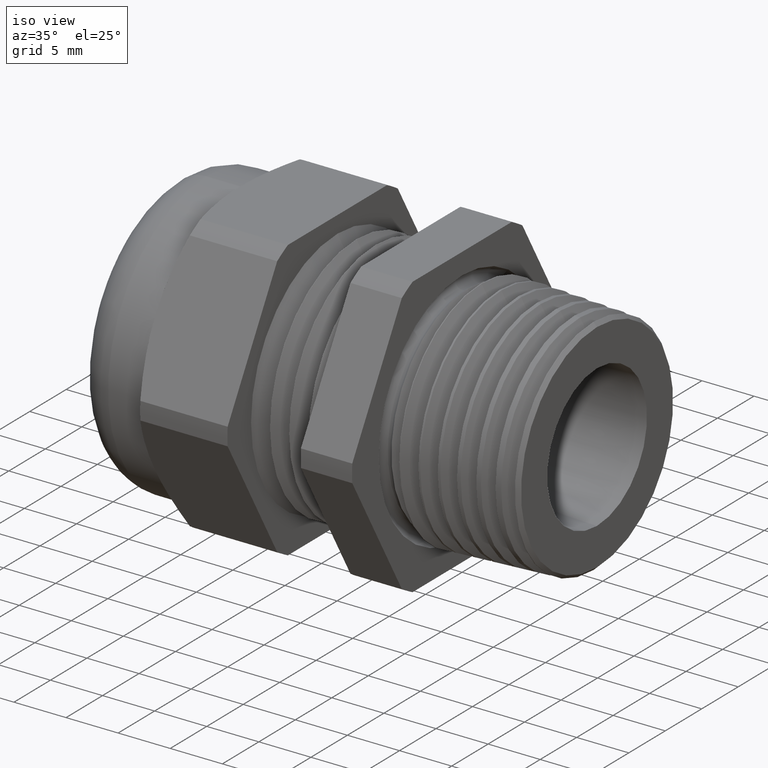
[diagram: clean part render]
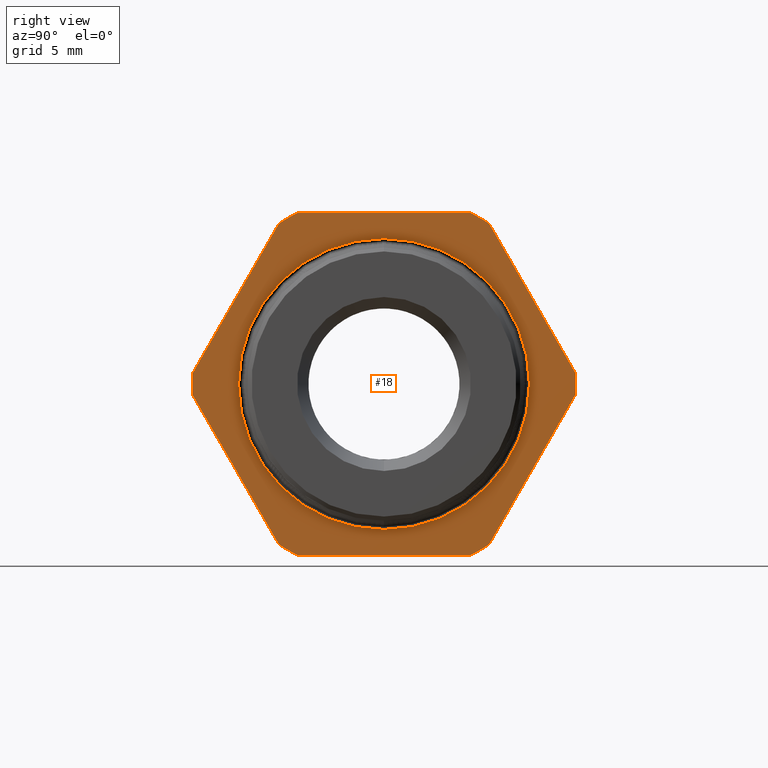
[diagram: tour spotlight — one face highlighted and labeled with its STEP entity id]
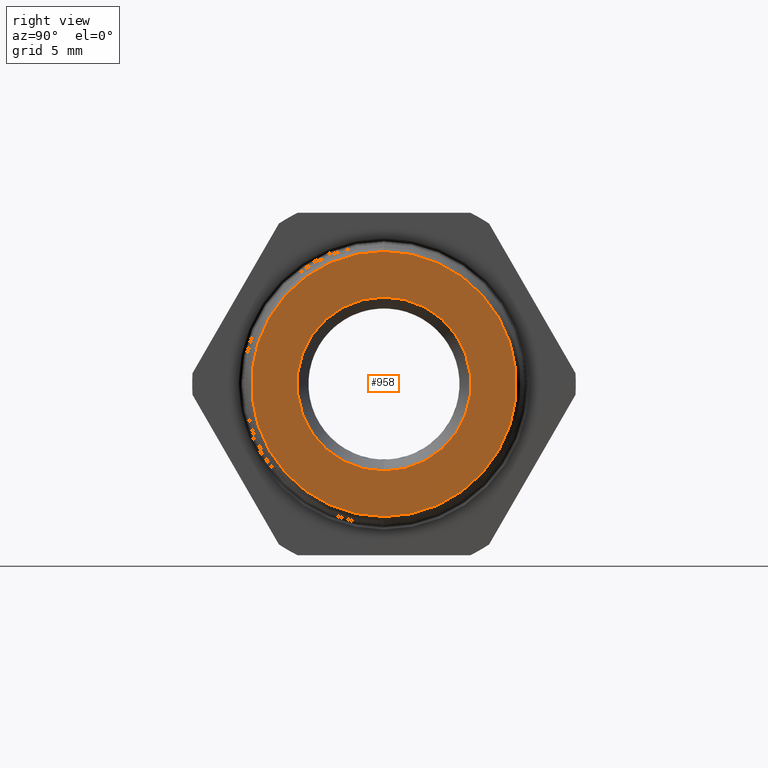
[diagram: tour spotlight — one face highlighted and labeled with its STEP entity id]
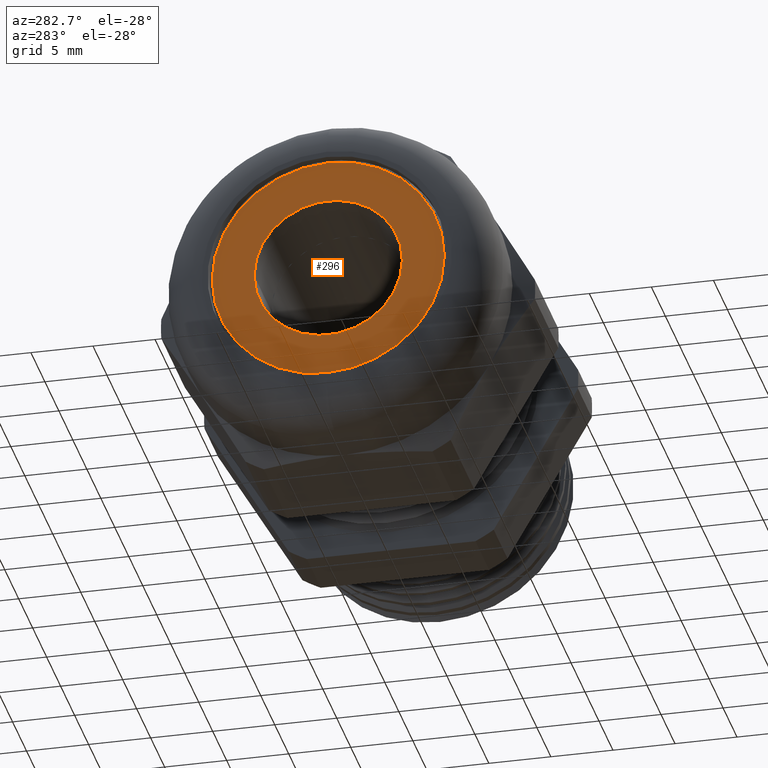
[diagram: tour spotlight — one face highlighted and labeled with its STEP entity id]
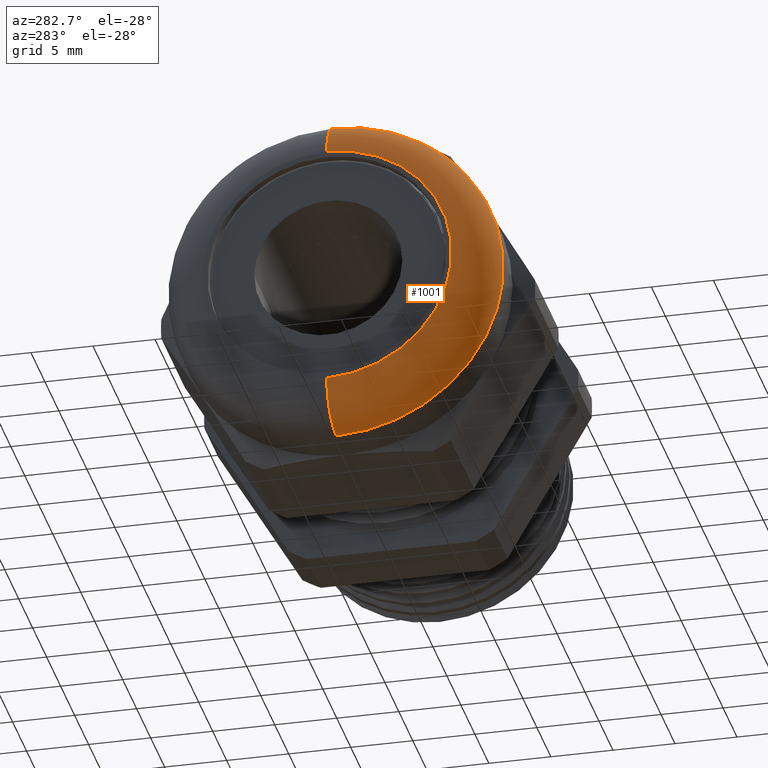
[diagram: tour spotlight — one face highlighted and labeled with its STEP entity id]
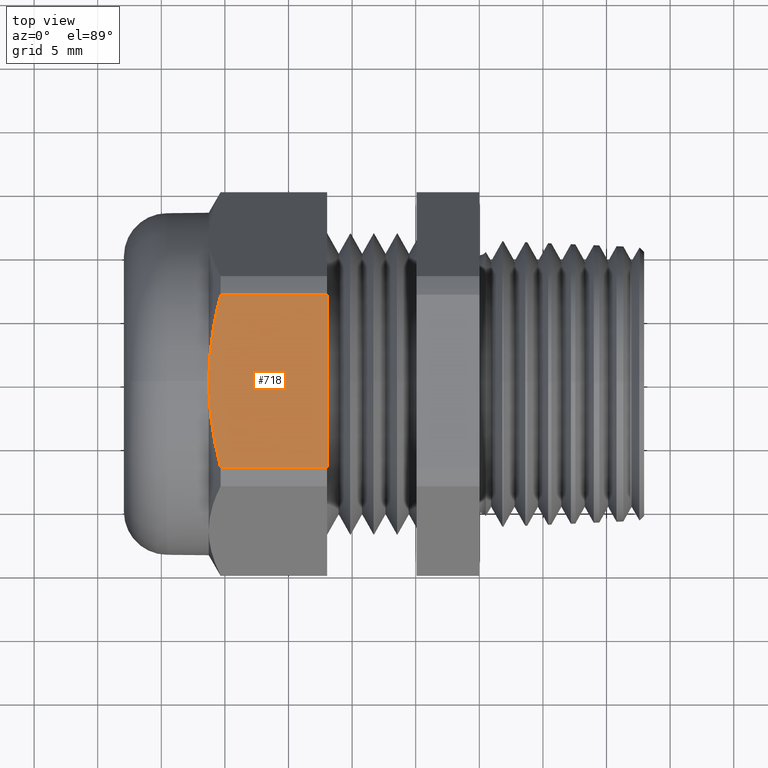
[diagram: tour spotlight — one face highlighted and labeled with its STEP entity id]
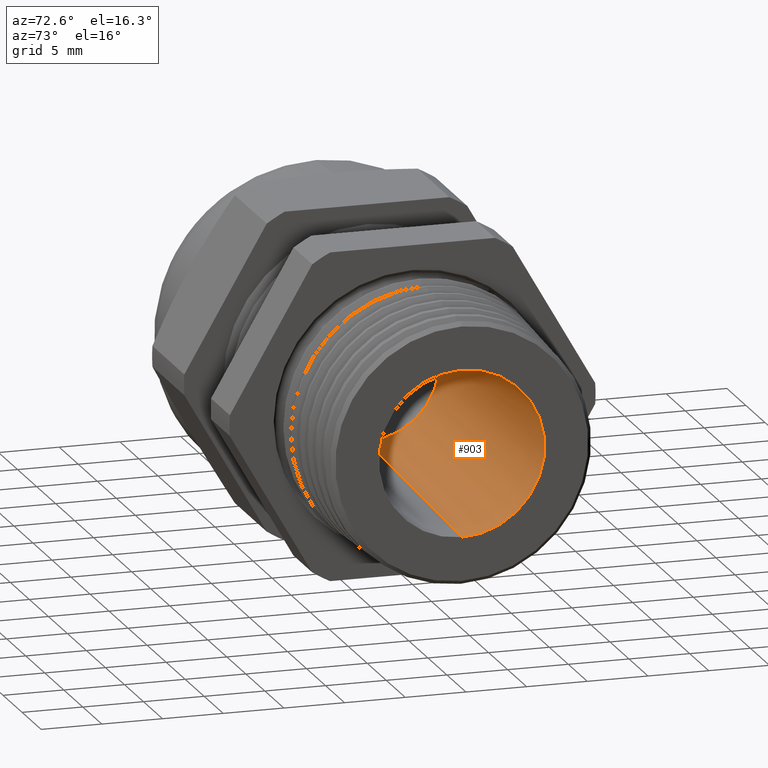
[diagram: tour spotlight — one face highlighted and labeled with its STEP entity id]
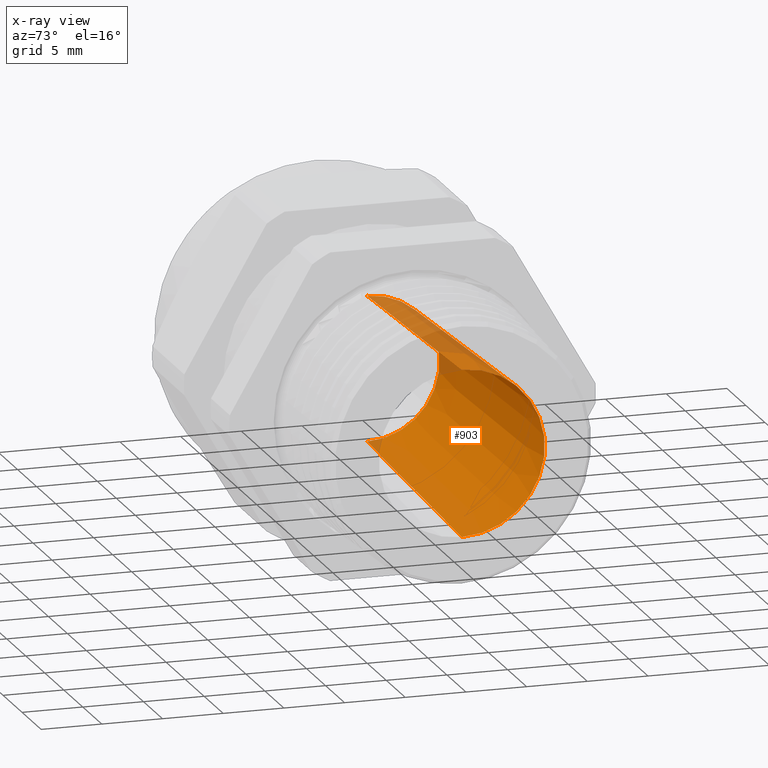
[diagram: x-ray of the same camera — body ghosted, this tour face saturated]
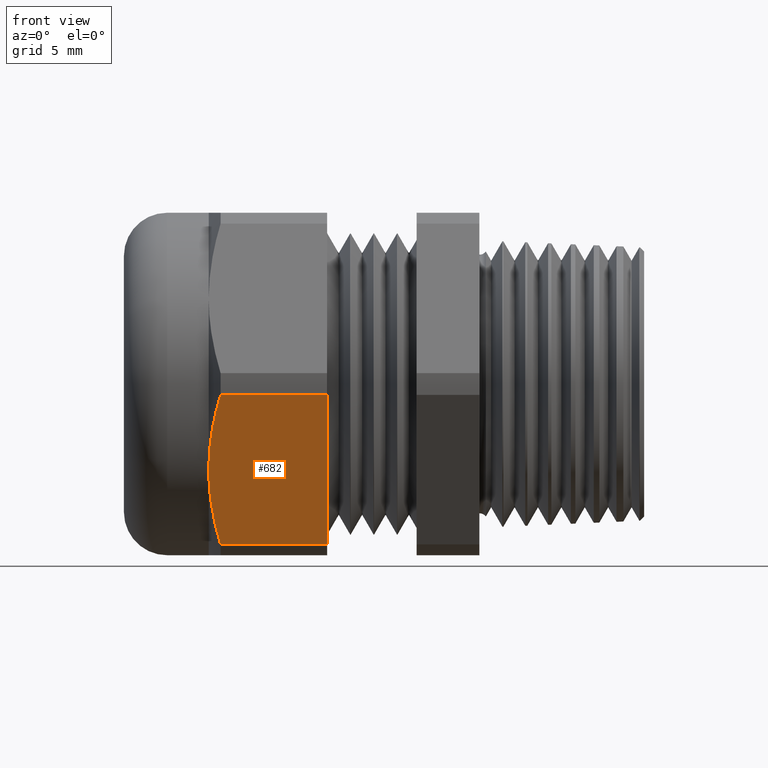
[diagram: tour spotlight — one face highlighted and labeled with its STEP entity id]
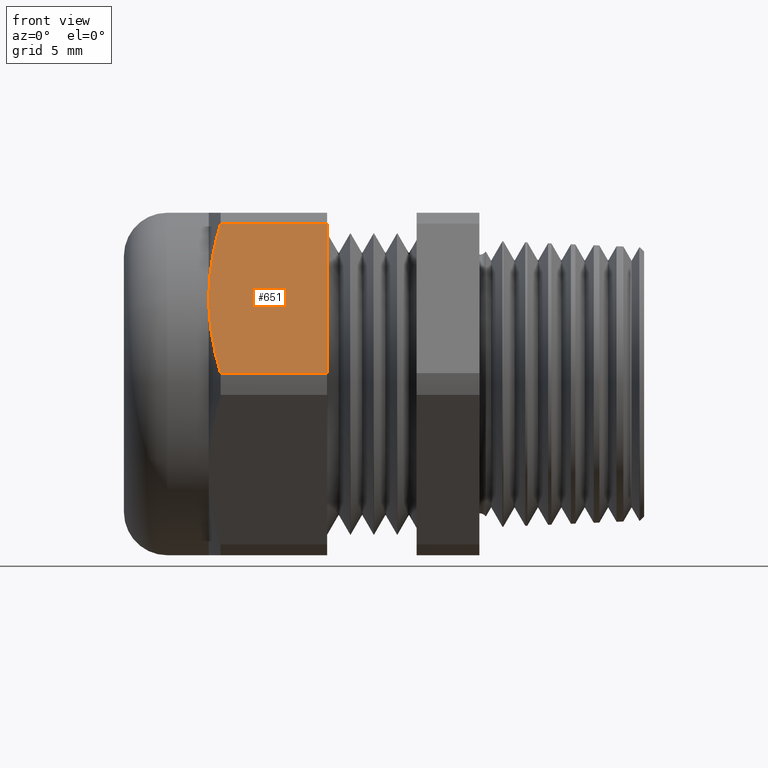
[diagram: tour spotlight — one face highlighted and labeled with its STEP entity id]
A machine part: a face-by-face anatomy tour. The part has 126 B-rep faces; the first image is the clean iso view, then the 8 largest visible faces are spotlighted one at a time (largest first), each with its STEP entity span.

Face 1 — right view, entity #18. In plain terms, the highlighted planar face has unit normal (-1, 0, 0).
Definition (entity closure, byte-faithful):
#9 = ORIENTED_EDGE ( 'NONE', *, *, #10, .F. ) ;
#10 = EDGE_CURVE ( 'NONE', #15, #16, #1203, .T. ) ;
#11 = ORIENTED_EDGE ( 'NONE', *, *, #17, .T. ) ;
#12 = VERTEX_POINT ( 'NONE', #1199 ) ;
#13 = EDGE_LOOP ( 'NONE', ( #11, #9, #38, #31, #34, #21, #24, #35, #53, #50, #47, #41 ) ) ;
#15 = VERTEX_POINT ( 'NONE', #1198 ) ;
#16 = VERTEX_POINT ( 'NONE', #1197 ) ;
#17 = EDGE_CURVE ( 'NONE', #12, #16, #1196, .T. ) ;
#18 = ADVANCED_FACE ( 'NONE', ( #1192, #1191 ), #1190, .F. ) ;
#21 = ORIENTED_EDGE ( 'NONE', *, *, #22, .F. ) ;
#22 = EDGE_CURVE ( 'NONE', #27, #23, #1244, .T. ) ;
#23 = VERTEX_POINT ( 'NONE', #1239 ) ;
#24 = ORIENTED_EDGE ( 'NONE', *, *, #25, .T. ) ;
#25 = EDGE_CURVE ( 'NONE', #27, #26, #1238, .T. ) ;
#26 = VERTEX_POINT ( 'NONE', #1234 ) ;
#27 = VERTEX_POINT ( 'NONE', #1233 ) ;
#31 = ORIENTED_EDGE ( 'NONE', *, *, #37, .F. ) ;
#32 = VERTEX_POINT ( 'NONE', #1228 ) ;
#33 = VERTEX_POINT ( 'NONE', #1227 ) ;
#34 = ORIENTED_EDGE ( 'NONE', *, *, #36, .T. ) ;
#35 = ORIENTED_EDGE ( 'NONE', *, *, #49, .F. ) ;
#36 = EDGE_CURVE ( 'NONE', #33, #23, #1226, .T. ) ;
#37 = EDGE_CURVE ( 'NONE', #33, #32, #1222, .T. ) ;
#38 = ORIENTED_EDGE ( 'NONE', *, *, #40, .T. ) ;
#39 = EDGE_LOOP ( 'NONE', ( #63, #65 ) ) ;
#40 = EDGE_CURVE ( 'NONE', #15, #32, #1217, .T. ) ;
#41 = ORIENTED_EDGE ( 'NONE', *, *, #43, .F. ) ;
#43 = EDGE_CURVE ( 'NONE', #12, #44, #1274, .T. ) ;
#44 = VERTEX_POINT ( 'NONE', #1269 ) ;
#45 = VERTEX_POINT ( 'NONE', #1268 ) ;
#46 = EDGE_CURVE ( 'NONE', #45, #44, #1267, .T. ) ;
#47 = ORIENTED_EDGE ( 'NONE', *, *, #46, .T. ) ;
#48 = VERTEX_POINT ( 'NONE', #1263 ) ;
#49 = EDGE_CURVE ( 'NONE', #48, #26, #1262, .T. ) ;
#50 = ORIENTED_EDGE ( 'NONE', *, *, #51, .F. ) ;
#51 = EDGE_CURVE ( 'NONE', #45, #54, #1257, .T. ) ;
#52 = EDGE_CURVE ( 'NONE', #48, #54, #1252, .T. ) ;
#53 = ORIENTED_EDGE ( 'NONE', *, *, #52, .T. ) ;
#54 = VERTEX_POINT ( 'NONE', #1248 ) ;
#63 = ORIENTED_EDGE ( 'NONE', *, *, #64, .F. ) ;
#64 = EDGE_CURVE ( 'NONE', #206, #203, #1298, .T. ) ;
#65 = ORIENTED_EDGE ( 'NONE', *, *, #205, .F. ) ;
#203 = VERTEX_POINT ( 'NONE', #1586 ) ;
#205 = EDGE_CURVE ( 'NONE', #203, #206, #1585, .T. ) ;
#206 = VERTEX_POINT ( 'NONE', #1580 ) ;
#1186 = DIRECTION ( 'NONE',  ( 0.0000000000000000000, 0.0000000000000000000, 1.000000000000000000 ) ) ;
#1187 = DIRECTION ( 'NONE',  ( -1.000000000000000000, 0.0000000000000000000, 0.0000000000000000000 ) ) ;
#1188 = CARTESIAN_POINT ( 'NONE',  ( 0.0000000000000000000, 0.5936000000000001300, 0.0000000000000000000 ) ) ;
#1189 = AXIS2_PLACEMENT_3D ( 'NONE', #1188, #1187, #1186 ) ;
#1190 = PLANE ( 'NONE',  #1189 ) ;
#1191 = FACE_BOUND ( 'NONE', #39, .T. ) ;
#1192 = FACE_OUTER_BOUND ( 'NONE', #13, .T. ) ;
#1193 = DIRECTION ( 'NONE',  ( 0.0000000000000000000, 0.5000000000000003300, -0.8660254037844384900 ) ) ;
#1194 = VECTOR ( 'NONE', #1193, 39.37007874015748900 ) ;
#1195 = CARTESIAN_POINT ( 'NONE',  ( 0.0000000000000000000, -0.5926543782626886300, -0.03349250552087959500 ) ) ;
#1196 = LINE ( 'NONE', #1195, #1194 ) ;
#1197 = CARTESIAN_POINT ( 'NONE',  ( 0.0000000000000000000, -0.3253325497488162000, -0.4965074944791207400 ) ) ;
#1198 = CARTESIAN_POINT ( 'NONE',  ( 0.0000000000000000000, -0.2673218285138723200, -0.5299999999999999200 ) ) ;
#1199 = CARTESIAN_POINT ( 'NONE',  ( 0.0000000000000000000, -0.5926543782626886300, -0.03349250552087959500 ) ) ;
#1200 = DIRECTION ( 'NONE',  ( 0.0000000000000000000, 0.0000000000000000000, 1.000000000000000000 ) ) ;
#1201 = DIRECTION ( 'NONE',  ( -1.000000000000000000, 0.0000000000000000000, 0.0000000000000000000 ) ) ;
#1202 = AXIS2_PLACEMENT_3D ( 'NONE', #1209, #1201, #1200 ) ;
#1203 = CIRCLE ( 'NONE', #1202, 0.5936000000000001300 ) ;
#1209 = CARTESIAN_POINT ( 'NONE',  ( 0.0000000000000000000, 0.0000000000000000000, 0.0000000000000000000 ) ) ;
#1215 = VECTOR ( 'NONE', #1275, 39.37007874015748100 ) ;
#1216 = CARTESIAN_POINT ( 'NONE',  ( 0.0000000000000000000, -0.2673218285138724300, -0.5299999999999999200 ) ) ;
#1217 = LINE ( 'NONE', #1216, #1215 ) ;
#1218 = DIRECTION ( 'NONE',  ( 0.0000000000000000000, 0.0000000000000000000, 1.000000000000000000 ) ) ;
#1219 = DIRECTION ( 'NONE',  ( -1.000000000000000000, 0.0000000000000000000, 0.0000000000000000000 ) ) ;
#1220 = CARTESIAN_POINT ( 'NONE',  ( 0.0000000000000000000, 0.0000000000000000000, 0.0000000000000000000 ) ) ;
#1221 = AXIS2_PLACEMENT_3D ( 'NONE', #1220, #1219, #1218 ) ;
#1222 = CIRCLE ( 'NONE', #1221, 0.5936000000000001300 ) ;
#1223 = DIRECTION ( 'NONE',  ( 0.0000000000000000000, 0.5000000000000000000, 0.8660254037844386000 ) ) ;
#1224 = VECTOR ( 'NONE', #1223, 39.37007874015748900 ) ;
#1225 = CARTESIAN_POINT ( 'NONE',  ( 0.0000000000000000000, 0.3253325497488162000, -0.4965074944791207400 ) ) ;
#1226 = LINE ( 'NONE', #1225, #1224 ) ;
#1227 = CARTESIAN_POINT ( 'NONE',  ( 0.0000000000000000000, 0.3253325497488163100, -0.4965074944791206800 ) ) ;
#1228 = CARTESIAN_POINT ( 'NONE',  ( 0.0000000000000000000, 0.2673218285138724300, -0.5299999999999999200 ) ) ;
#1233 = CARTESIAN_POINT ( 'NONE',  ( 0.0000000000000000000, 0.5926543782626885200, 0.03349250552087933200 ) ) ;
#1234 = CARTESIAN_POINT ( 'NONE',  ( 0.0000000000000000000, 0.3253325497488162000, 0.4965074944791207400 ) ) ;
#1235 = DIRECTION ( 'NONE',  ( 0.0000000000000000000, -0.5000000000000001100, 0.8660254037844386000 ) ) ;
#1236 = VECTOR ( 'NONE', #1235, 39.37007874015748100 ) ;
#1237 = CARTESIAN_POINT ( 'NONE',  ( 0.0000000000000000000, 0.5926543782626886300, 0.03349250552087932500 ) ) ;
#1238 = LINE ( 'NONE', #1237, #1236 ) ;
#1239 = CARTESIAN_POINT ( 'NONE',  ( 0.0000000000000000000, 0.5926543782626886300, -0.03349250552087918600 ) ) ;
#1240 = DIRECTION ( 'NONE',  ( 0.0000000000000000000, 0.0000000000000000000, 1.000000000000000000 ) ) ;
#1241 = DIRECTION ( 'NONE',  ( -1.000000000000000000, 0.0000000000000000000, 0.0000000000000000000 ) ) ;
#1242 = CARTESIAN_POINT ( 'NONE',  ( 0.0000000000000000000, 0.0000000000000000000, 0.0000000000000000000 ) ) ;
#1243 = AXIS2_PLACEMENT_3D ( 'NONE', #1242, #1241, #1240 ) ;
#1244 = CIRCLE ( 'NONE', #1243, 0.5936000000000001300 ) ;
#1248 = CARTESIAN_POINT ( 'NONE',  ( 0.0000000000000000000, -0.2673218285138724300, 0.5299999999999999200 ) ) ;
#1249 = DIRECTION ( 'NONE',  ( 0.0000000000000000000, -1.000000000000000000, 0.0000000000000000000 ) ) ;
#1250 = VECTOR ( 'NONE', #1249, 39.37007874015748100 ) ;
#1251 = CARTESIAN_POINT ( 'NONE',  ( 0.0000000000000000000, 0.2673218285138724300, 0.5299999999999999200 ) ) ;
#1252 = LINE ( 'NONE', #1251, #1250 ) ;
#1253 = DIRECTION ( 'NONE',  ( 0.0000000000000000000, 0.0000000000000000000, 1.000000000000000000 ) ) ;
#1254 = DIRECTION ( 'NONE',  ( -1.000000000000000000, 0.0000000000000000000, 0.0000000000000000000 ) ) ;
#1255 = CARTESIAN_POINT ( 'NONE',  ( 0.0000000000000000000, 0.0000000000000000000, 0.0000000000000000000 ) ) ;
#1256 = AXIS2_PLACEMENT_3D ( 'NONE', #1255, #1254, #1253 ) ;
#1257 = CIRCLE ( 'NONE', #1256, 0.5936000000000001300 ) ;
#1258 = DIRECTION ( 'NONE',  ( 0.0000000000000000000, 0.0000000000000000000, 1.000000000000000000 ) ) ;
#1259 = DIRECTION ( 'NONE',  ( -1.000000000000000000, 0.0000000000000000000, 0.0000000000000000000 ) ) ;
#1260 = CARTESIAN_POINT ( 'NONE',  ( 0.0000000000000000000, 0.0000000000000000000, 0.0000000000000000000 ) ) ;
#1261 = AXIS2_PLACEMENT_3D ( 'NONE', #1260, #1259, #1258 ) ;
#1262 = CIRCLE ( 'NONE', #1261, 0.5936000000000001300 ) ;
#1263 = CARTESIAN_POINT ( 'NONE',  ( 0.0000000000000000000, 0.2673218285138722600, 0.5299999999999999200 ) ) ;
#1264 = DIRECTION ( 'NONE',  ( 0.0000000000000000000, -0.5000000000000001100, -0.8660254037844386000 ) ) ;
#1265 = VECTOR ( 'NONE', #1264, 39.37007874015748100 ) ;
#1266 = CARTESIAN_POINT ( 'NONE',  ( 0.0000000000000000000, -0.3253325497488160900, 0.4965074944791207900 ) ) ;
#1267 = LINE ( 'NONE', #1266, #1265 ) ;
#1268 = CARTESIAN_POINT ( 'NONE',  ( 0.0000000000000000000, -0.3253325497488158700, 0.4965074944791209600 ) ) ;
#1269 = CARTESIAN_POINT ( 'NONE',  ( 0.0000000000000000000, -0.5926543782626886300, 0.03349250552087911600 ) ) ;
#1270 = DIRECTION ( 'NONE',  ( 0.0000000000000000000, 0.0000000000000000000, 1.000000000000000000 ) ) ;
#1271 = DIRECTION ( 'NONE',  ( -1.000000000000000000, 0.0000000000000000000, 0.0000000000000000000 ) ) ;
#1272 = CARTESIAN_POINT ( 'NONE',  ( 0.0000000000000000000, 0.0000000000000000000, 0.0000000000000000000 ) ) ;
#1273 = AXIS2_PLACEMENT_3D ( 'NONE', #1272, #1271, #1270 ) ;
#1274 = CIRCLE ( 'NONE', #1273, 0.5936000000000001300 ) ;
#1275 = DIRECTION ( 'NONE',  ( 0.0000000000000000000, 1.000000000000000000, 0.0000000000000000000 ) ) ;
#1290 = DIRECTION ( 'NONE',  ( 0.0000000000000000000, 0.0000000000000000000, 1.000000000000000000 ) ) ;
#1291 = DIRECTION ( 'NONE',  ( 1.000000000000000000, 0.0000000000000000000, 0.0000000000000000000 ) ) ;
#1292 = CARTESIAN_POINT ( 'NONE',  ( 0.0000000000000000000, 0.0000000000000000000, 0.0000000000000000000 ) ) ;
#1293 = AXIS2_PLACEMENT_3D ( 'NONE', #1292, #1291, #1290 ) ;
#1298 = CIRCLE ( 'NONE', #1293, 0.4499999999999998400 ) ;
#1580 = CARTESIAN_POINT ( 'NONE',  ( 0.0000000000000000000, 0.0000000000000000000, -0.4499999999999998400 ) ) ;
#1581 = DIRECTION ( 'NONE',  ( 0.0000000000000000000, 0.0000000000000000000, 1.000000000000000000 ) ) ;
#1582 = DIRECTION ( 'NONE',  ( 1.000000000000000000, 0.0000000000000000000, 0.0000000000000000000 ) ) ;
#1583 = CARTESIAN_POINT ( 'NONE',  ( 0.0000000000000000000, 0.0000000000000000000, 0.0000000000000000000 ) ) ;
#1584 = AXIS2_PLACEMENT_3D ( 'NONE', #1583, #1582, #1581 ) ;
#1585 = CIRCLE ( 'NONE', #1584, 0.4499999999999998400 ) ;
#1586 = CARTESIAN_POINT ( 'NONE',  ( 0.0000000000000000000, 5.510910596163088300E-017, 0.4499999999999998400 ) ) ;

Face 2 — right view, entity #958. In plain terms, the highlighted planar face has unit normal (-1, 0, 0).
Definition (entity closure, byte-faithful):
#178 = VERTEX_POINT ( 'NONE', #1512 ) ;
#182 = EDGE_CURVE ( 'NONE', #178, #183, #1507, .T. ) ;
#183 = VERTEX_POINT ( 'NONE', #1502 ) ;
#886 = ORIENTED_EDGE ( 'NONE', *, *, #887, .T. ) ;
#887 = EDGE_CURVE ( 'NONE', #3475, #3473, #2929, .T. ) ;
#888 = ORIENTED_EDGE ( 'NONE', *, *, #3469, .T. ) ;
#889 = EDGE_LOOP ( 'NONE', ( #890, #891 ) ) ;
#890 = ORIENTED_EDGE ( 'NONE', *, *, #182, .T. ) ;
#891 = ORIENTED_EDGE ( 'NONE', *, *, #957, .T. ) ;
#957 = EDGE_CURVE ( 'NONE', #183, #178, #2979, .T. ) ;
#958 = ADVANCED_FACE ( 'NONE', ( #2974, #2973 ), #2971, .F. ) ;
#959 = EDGE_LOOP ( 'NONE', ( #886, #888 ) ) ;
#1502 = CARTESIAN_POINT ( 'NONE',  ( 0.5100000000000000100, 3.297379322169752000E-017, 0.2692514547431565900 ) ) ;
#1503 = DIRECTION ( 'NONE',  ( 0.0000000000000000000, 0.0000000000000000000, 1.000000000000000000 ) ) ;
#1504 = DIRECTION ( 'NONE',  ( -1.000000000000000000, 0.0000000000000000000, 0.0000000000000000000 ) ) ;
#1505 = CARTESIAN_POINT ( 'NONE',  ( 0.5100000000000000100, 0.0000000000000000000, 0.0000000000000000000 ) ) ;
#1506 = AXIS2_PLACEMENT_3D ( 'NONE', #1505, #1504, #1503 ) ;
#1507 = CIRCLE ( 'NONE', #1506, 0.2692514547431565900 ) ;
#1512 = CARTESIAN_POINT ( 'NONE',  ( 0.5100000000000000100, 0.0000000000000000000, -0.2692514547431565900 ) ) ;
#2925 = DIRECTION ( 'NONE',  ( 0.0000000000000000000, 0.0000000000000000000, 1.000000000000000000 ) ) ;
#2926 = DIRECTION ( 'NONE',  ( 1.000000000000000000, 0.0000000000000000000, 0.0000000000000000000 ) ) ;
#2927 = CARTESIAN_POINT ( 'NONE',  ( 0.5099999999999999000, 0.0000000000000000000, 0.0000000000000000000 ) ) ;
#2928 = AXIS2_PLACEMENT_3D ( 'NONE', #2927, #2926, #2925 ) ;
#2929 = CIRCLE ( 'NONE', #2928, 0.4102329191166589900 ) ;
#2967 = DIRECTION ( 'NONE',  ( 0.0000000000000000000, 0.0000000000000000000, 1.000000000000000000 ) ) ;
#2968 = DIRECTION ( 'NONE',  ( -1.000000000000000000, 0.0000000000000000000, 0.0000000000000000000 ) ) ;
#2969 = CARTESIAN_POINT ( 'NONE',  ( 0.5099999999999999000, 0.4227329191166588300, 0.0000000000000000000 ) ) ;
#2970 = AXIS2_PLACEMENT_3D ( 'NONE', #2969, #2968, #2967 ) ;
#2971 = PLANE ( 'NONE',  #2970 ) ;
#2973 = FACE_BOUND ( 'NONE', #889, .T. ) ;
#2974 = FACE_OUTER_BOUND ( 'NONE', #959, .T. ) ;
#2975 = DIRECTION ( 'NONE',  ( 0.0000000000000000000, 0.0000000000000000000, 1.000000000000000000 ) ) ;
#2976 = DIRECTION ( 'NONE',  ( -1.000000000000000000, 0.0000000000000000000, 0.0000000000000000000 ) ) ;
#2977 = CARTESIAN_POINT ( 'NONE',  ( 0.5100000000000000100, 0.0000000000000000000, 0.0000000000000000000 ) ) ;
#2978 = AXIS2_PLACEMENT_3D ( 'NONE', #2977, #2976, #2975 ) ;
#2979 = CIRCLE ( 'NONE', #2978, 0.2692514547431565900 ) ;
#3259 = DIRECTION ( 'NONE',  ( 0.0000000000000000000, 0.0000000000000000000, 1.000000000000000000 ) ) ;
#3260 = DIRECTION ( 'NONE',  ( 1.000000000000000000, 0.0000000000000000000, 0.0000000000000000000 ) ) ;
#3261 = CARTESIAN_POINT ( 'NONE',  ( 0.5099999999999999000, 0.0000000000000000000, 0.0000000000000000000 ) ) ;
#3262 = AXIS2_PLACEMENT_3D ( 'NONE', #3261, #3260, #3259 ) ;
#3263 = CIRCLE ( 'NONE', #3262, 0.4102329191166589900 ) ;
#3314 = CARTESIAN_POINT ( 'NONE',  ( 0.5099999999999999000, 0.0000000000000000000, 0.4102329191166589900 ) ) ;
#3315 = CARTESIAN_POINT ( 'NONE',  ( 0.5099999999999999000, 5.103939133694167700E-017, -0.4102329191166589900 ) ) ;
#3469 = EDGE_CURVE ( 'NONE', #3473, #3475, #3263, .T. ) ;
#3473 = VERTEX_POINT ( 'NONE', #3315 ) ;
#3475 = VERTEX_POINT ( 'NONE', #3314 ) ;

Face 3 — auxiliary view, entity #296. In plain terms, the highlighted planar face has unit normal (-1, -0, 0).
Definition (entity closure, byte-faithful):
#279 = EDGE_CURVE ( 'NONE', #280, #281, #1700, .T. ) ;
#280 = VERTEX_POINT ( 'NONE', #1695 ) ;
#281 = VERTEX_POINT ( 'NONE', #1694 ) ;
#296 = ADVANCED_FACE ( 'NONE', ( #1735, #1734 ), #1733, .T. ) ;
#297 = EDGE_LOOP ( 'NONE', ( #298, #299 ) ) ;
#298 = ORIENTED_EDGE ( 'NONE', *, *, #350, .T. ) ;
#299 = ORIENTED_EDGE ( 'NONE', *, *, #340, .T. ) ;
#339 = VERTEX_POINT ( 'NONE', #1843 ) ;
#340 = EDGE_CURVE ( 'NONE', #339, #351, #1841, .T. ) ;
#341 = EDGE_LOOP ( 'NONE', ( #342, #343 ) ) ;
#342 = ORIENTED_EDGE ( 'NONE', *, *, #394, .T. ) ;
#343 = ORIENTED_EDGE ( 'NONE', *, *, #279, .T. ) ;
#350 = EDGE_CURVE ( 'NONE', #351, #339, #1821, .T. ) ;
#351 = VERTEX_POINT ( 'NONE', #1816 ) ;
#394 = EDGE_CURVE ( 'NONE', #281, #280, #1926, .T. ) ;
#1694 = CARTESIAN_POINT ( 'NONE',  ( -1.079999999999999800, 0.2349999999999999900, 0.0000000000000000000 ) ) ;
#1695 = CARTESIAN_POINT ( 'NONE',  ( -1.079999999999999800, -0.2350000000000003800, 2.877919977996282900E-017 ) ) ;
#1696 = DIRECTION ( 'NONE',  ( 0.0000000000000000000, 1.000000000000000000, 0.0000000000000000000 ) ) ;
#1697 = DIRECTION ( 'NONE',  ( 1.000000000000000000, 1.214306433183765200E-016, 0.0000000000000000000 ) ) ;
#1698 = CARTESIAN_POINT ( 'NONE',  ( -1.079999999999999800, -1.768595597816114400E-016, 0.0000000000000000000 ) ) ;
#1699 = AXIS2_PLACEMENT_3D ( 'NONE', #1698, #1697, #1696 ) ;
#1700 = CIRCLE ( 'NONE', #1699, 0.2350000000000001500 ) ;
#1729 = DIRECTION ( 'NONE',  ( 1.214306433183765200E-016, -1.000000000000000000, 0.0000000000000000000 ) ) ;
#1730 = DIRECTION ( 'NONE',  ( -1.000000000000000000, -1.214306433183765200E-016, 0.0000000000000000000 ) ) ;
#1731 = CARTESIAN_POINT ( 'NONE',  ( -1.080000000000000100, 0.3782499999999999800, 0.0000000000000000000 ) ) ;
#1732 = AXIS2_PLACEMENT_3D ( 'NONE', #1731, #1730, #1729 ) ;
#1733 = PLANE ( 'NONE',  #1732 ) ;
#1734 = FACE_BOUND ( 'NONE', #341, .T. ) ;
#1735 = FACE_OUTER_BOUND ( 'NONE', #297, .T. ) ;
#1816 = CARTESIAN_POINT ( 'NONE',  ( -1.080000000000000100, -0.3682500000000003000, 0.0000000000000000000 ) ) ;
#1817 = DIRECTION ( 'NONE',  ( 0.0000000000000000000, -1.000000000000000000, 0.0000000000000000000 ) ) ;
#1818 = DIRECTION ( 'NONE',  ( -1.000000000000000000, -1.214306433183765200E-016, 0.0000000000000000000 ) ) ;
#1819 = CARTESIAN_POINT ( 'NONE',  ( -1.080000000000000100, -1.768595597816114600E-016, 0.0000000000000000000 ) ) ;
#1820 = AXIS2_PLACEMENT_3D ( 'NONE', #1819, #1818, #1817 ) ;
#1821 = CIRCLE ( 'NONE', #1820, 0.3682500000000000800 ) ;
#1837 = DIRECTION ( 'NONE',  ( 0.0000000000000000000, -1.000000000000000000, 0.0000000000000000000 ) ) ;
#1838 = DIRECTION ( 'NONE',  ( -1.000000000000000000, -1.214306433183765200E-016, 0.0000000000000000000 ) ) ;
#1839 = CARTESIAN_POINT ( 'NONE',  ( -1.080000000000000100, -1.768595597816114600E-016, 0.0000000000000000000 ) ) ;
#1840 = AXIS2_PLACEMENT_3D ( 'NONE', #1839, #1838, #1837 ) ;
#1841 = CIRCLE ( 'NONE', #1840, 0.3682500000000000800 ) ;
#1843 = CARTESIAN_POINT ( 'NONE',  ( -1.080000000000000100, 0.3682499999999999100, 4.570994177817497700E-017 ) ) ;
#1922 = DIRECTION ( 'NONE',  ( 0.0000000000000000000, 1.000000000000000000, 0.0000000000000000000 ) ) ;
#1923 = DIRECTION ( 'NONE',  ( 1.000000000000000000, 1.214306433183765200E-016, 0.0000000000000000000 ) ) ;
#1924 = CARTESIAN_POINT ( 'NONE',  ( -1.079999999999999800, -1.768595597816114400E-016, 0.0000000000000000000 ) ) ;
#1925 = AXIS2_PLACEMENT_3D ( 'NONE', #1924, #1923, #1922 ) ;
#1926 = CIRCLE ( 'NONE', #1925, 0.2350000000000001500 ) ;

Face 4 — auxiliary view, entity #1001. In plain terms, the highlighted toroidal blend (fillet) surface has major radius 10.0686 mm and minor (blend) radius 3.3934 mm.
Definition (entity closure, byte-faithful):
#113 = VERTEX_POINT ( 'NONE', #1373 ) ;
#846 = EDGE_CURVE ( 'NONE', #3484, #113, #2846, .T. ) ;
#977 = EDGE_CURVE ( 'NONE', #3481, #3480, #3010, .T. ) ;
#1001 = ADVANCED_FACE ( 'NONE', ( #3040 ), #3039, .T. ) ;
#1002 = EDGE_LOOP ( 'NONE', ( #1003, #1004, #1005, #1006 ) ) ;
#1003 = ORIENTED_EDGE ( 'NONE', *, *, #3482, .F. ) ;
#1004 = ORIENTED_EDGE ( 'NONE', *, *, #846, .F. ) ;
#1005 = ORIENTED_EDGE ( 'NONE', *, *, #3476, .T. ) ;
#1006 = ORIENTED_EDGE ( 'NONE', *, *, #977, .F. ) ;
#1373 = CARTESIAN_POINT ( 'NONE',  ( -1.100000000000000100, 5.672563973650537800E-017, 0.3963999999999998100 ) ) ;
#2842 = DIRECTION ( 'NONE',  ( 0.0000000000000000000, 0.0000000000000000000, -1.000000000000000000 ) ) ;
#2843 = DIRECTION ( 'NONE',  ( -1.000000000000000000, 0.0000000000000000000, 0.0000000000000000000 ) ) ;
#2844 = CARTESIAN_POINT ( 'NONE',  ( -1.100000000000000100, 0.0000000000000000000, 0.0000000000000000000 ) ) ;
#2845 = AXIS2_PLACEMENT_3D ( 'NONE', #2844, #2843, #2842 ) ;
#2846 = CIRCLE ( 'NONE', #2845, 0.3963999999999998100 ) ;
#3006 = DIRECTION ( 'NONE',  ( 0.0000000000000000000, 0.0000000000000000000, -1.000000000000000000 ) ) ;
#3007 = DIRECTION ( 'NONE',  ( 1.000000000000000000, 0.0000000000000000000, 0.0000000000000000000 ) ) ;
#3008 = CARTESIAN_POINT ( 'NONE',  ( -0.9663999999999999300, 0.0000000000000000000, 0.0000000000000000000 ) ) ;
#3009 = AXIS2_PLACEMENT_3D ( 'NONE', #3008, #3007, #3006 ) ;
#3010 = CIRCLE ( 'NONE', #3009, 0.5299999999999999200 ) ;
#3035 = DIRECTION ( 'NONE',  ( 0.0000000000000000000, 0.0000000000000000000, -1.000000000000000000 ) ) ;
#3036 = DIRECTION ( 'NONE',  ( 1.000000000000000000, 0.0000000000000000000, 0.0000000000000000000 ) ) ;
#3037 = CARTESIAN_POINT ( 'NONE',  ( -0.9663999999999999300, 0.0000000000000000000, 0.0000000000000000000 ) ) ;
#3038 = AXIS2_PLACEMENT_3D ( 'NONE', #3037, #3036, #3035 ) ;
#3039 = TOROIDAL_SURFACE ( 'NONE', #3038, 0.3963999999999998100, 0.1336000000000001400 ) ;
#3040 = FACE_OUTER_BOUND ( 'NONE', #1002, .T. ) ;
#3296 = CARTESIAN_POINT ( 'NONE',  ( -1.100000000000000100, 0.0000000000000000000, -0.3963999999999998100 ) ) ;
#3297 = DIRECTION ( 'NONE',  ( 0.0000000000000000000, 1.224646799147353700E-016, 1.000000000000000000 ) ) ;
#3298 = DIRECTION ( 'NONE',  ( 0.0000000000000000000, 1.000000000000000000, -1.224646799147353200E-016 ) ) ;
#3299 = CARTESIAN_POINT ( 'NONE',  ( -0.9663999999999999300, 4.854499911820106400E-017, 0.3963999999999998100 ) ) ;
#3300 = AXIS2_PLACEMENT_3D ( 'NONE', #3299, #3298, #3297 ) ;
#3301 = CIRCLE ( 'NONE', #3300, 0.1336000000000001100 ) ;
#3302 = CARTESIAN_POINT ( 'NONE',  ( -0.9663999999999999300, 0.0000000000000000000, 0.5299999999999999200 ) ) ;
#3303 = CARTESIAN_POINT ( 'NONE',  ( -0.9663999999999999300, 6.490628035480971200E-017, -0.5299999999999999200 ) ) ;
#3309 = DIRECTION ( 'NONE',  ( 0.0000000000000000000, 0.0000000000000000000, -1.000000000000000000 ) ) ;
#3310 = DIRECTION ( 'NONE',  ( 0.0000000000000000000, -1.000000000000000000, 0.0000000000000000000 ) ) ;
#3311 = CARTESIAN_POINT ( 'NONE',  ( -0.9663999999999999300, 0.0000000000000000000, -0.3963999999999998100 ) ) ;
#3312 = AXIS2_PLACEMENT_3D ( 'NONE', #3311, #3310, #3309 ) ;
#3313 = CIRCLE ( 'NONE', #3312, 0.1336000000000001100 ) ;
#3476 = EDGE_CURVE ( 'NONE', #3484, #3480, #3313, .T. ) ;
#3480 = VERTEX_POINT ( 'NONE', #3303 ) ;
#3481 = VERTEX_POINT ( 'NONE', #3302 ) ;
#3482 = EDGE_CURVE ( 'NONE', #113, #3481, #3301, .T. ) ;
#3484 = VERTEX_POINT ( 'NONE', #3296 ) ;

Face 5 — top view, entity #718. In plain terms, the highlighted planar face has unit normal (0, 0, 1).
Definition (entity closure, byte-faithful):
#602 = VERTEX_POINT ( 'NONE', #2337 ) ;
#605 = EDGE_CURVE ( 'NONE', #602, #606, #2335, .T. ) ;
#606 = VERTEX_POINT ( 'NONE', #2331 ) ;
#641 = ORIENTED_EDGE ( 'NONE', *, *, #642, .T. ) ;
#642 = EDGE_CURVE ( 'NONE', #3494, #670, #2442, .T. ) ;
#643 = ORIENTED_EDGE ( 'NONE', *, *, #650, .T. ) ;
#644 = ORIENTED_EDGE ( 'NONE', *, *, #645, .T. ) ;
#645 = EDGE_CURVE ( 'NONE', #676, #606, #2441, .T. ) ;
#650 = EDGE_CURVE ( 'NONE', #670, #676, #2428, .T. ) ;
#670 = VERTEX_POINT ( 'NONE', #2499 ) ;
#676 = VERTEX_POINT ( 'NONE', #2488 ) ;
#718 = ADVANCED_FACE ( 'NONE', ( #2594 ), #2597, .T. ) ;
#719 = EDGE_LOOP ( 'NONE', ( #720, #721, #641, #643, #644 ) ) ;
#720 = ORIENTED_EDGE ( 'NONE', *, *, #605, .F. ) ;
#721 = ORIENTED_EDGE ( 'NONE', *, *, #722, .T. ) ;
#722 = EDGE_CURVE ( 'NONE', #602, #3494, #2584, .T. ) ;
#2331 = CARTESIAN_POINT ( 'NONE',  ( -0.4708333333333333300, 0.2673218285138722600, 0.5299999999999999200 ) ) ;
#2332 = DIRECTION ( 'NONE',  ( 1.000000000000000000, 0.0000000000000000000, 0.0000000000000000000 ) ) ;
#2333 = VECTOR ( 'NONE', #2332, 39.37007874015748100 ) ;
#2334 = CARTESIAN_POINT ( 'NONE',  ( -2.533243884661831900, 0.2673218285138722600, 0.5299999999999999200 ) ) ;
#2335 = LINE ( 'NONE', #2334, #2333 ) ;
#2337 = CARTESIAN_POINT ( 'NONE',  ( -0.8007805228795398200, 0.2673218285138722600, 0.5299999999999999200 ) ) ;
#2420 = DIRECTION ( 'NONE',  ( 1.000000000000000000, 0.0000000000000000000, 0.0000000000000000000 ) ) ;
#2421 = VECTOR ( 'NONE', #2420, 39.37007874015748100 ) ;
#2422 = CARTESIAN_POINT ( 'NONE',  ( -2.533243884661831900, -0.2673218285138724300, 0.5299999999999999200 ) ) ;
#2428 = LINE ( 'NONE', #2422, #2421 ) ;
#2430 = DIRECTION ( 'NONE',  ( 0.0000000000000000000, 1.000000000000000000, 0.0000000000000000000 ) ) ;
#2431 = VECTOR ( 'NONE', #2430, 39.37007874015748100 ) ;
#2432 = CARTESIAN_POINT ( 'NONE',  ( -0.8007805228795398200, -0.2673218285138724300, 0.5299999999999999200 ) ) ;
#2433 = CARTESIAN_POINT ( 'NONE',  ( -0.8064647693670959900, -0.2454596720255573200, 0.5299999999999998000 ) ) ;
#2434 = CARTESIAN_POINT ( 'NONE',  ( -0.8116548691931352300, -0.2233522006217770200, 0.5299999999999999200 ) ) ;
#2435 = CARTESIAN_POINT ( 'NONE',  ( -0.8207557576897001100, -0.1789257074002588400, 0.5299999999999999200 ) ) ;
#2436 = CARTESIAN_POINT ( 'NONE',  ( -0.8246545637602134000, -0.1566720308095854700, 0.5299999999999999200 ) ) ;
#2437 = CARTESIAN_POINT ( 'NONE',  ( -0.8341465868220292500, -0.08977423242168816600, 0.5299999999999999200 ) ) ;
#2438 = CARTESIAN_POINT ( 'NONE',  ( -0.8375000000000000200, -0.04499114512754565100, 0.5300000000000000300 ) ) ;
#2439 = CARTESIAN_POINT ( 'NONE',  ( -0.8375000000000000200, 0.0000000000000000000, 0.5299999999999999200 ) ) ;
#2440 = CARTESIAN_POINT ( 'NONE',  ( -0.4708333333333333300, 0.4664000000000000400, 0.5299999999999999200 ) ) ;
#2441 = LINE ( 'NONE', #2440, #2431 ) ;
#2442 = B_SPLINE_CURVE_WITH_KNOTS ( 'NONE', 3,
 ( #2439, #2438, #2437, #2436, #2435, #2434, #2433, #2432 ),
 .UNSPECIFIED., .F., .F.,
 ( 4, 2, 2, 4 ),
 ( 0.01411129885236259200, 0.01752689908206323700, 0.01923469919691355900, 0.02094249931176388200 ),
 .UNSPECIFIED. ) ;
#2488 = CARTESIAN_POINT ( 'NONE',  ( -0.4708333333333333300, -0.2673218285138724300, 0.5299999999999999200 ) ) ;
#2499 = CARTESIAN_POINT ( 'NONE',  ( -0.8007805228795398200, -0.2673218285138724300, 0.5299999999999999200 ) ) ;
#2584 = B_SPLINE_CURVE_WITH_KNOTS ( 'NONE', 3,
 ( #2645, #2644, #2643, #2642, #2641, #2640, #2639, #2638 ),
 .UNSPECIFIED., .F., .F.,
 ( 4, 2, 2, 4 ),
 ( 0.007282999526850547600, 0.01069714918960657000, 0.01240422402098458100, 0.01411129885236259200 ),
 .UNSPECIFIED. ) ;
#2585 = DIRECTION ( 'NONE',  ( 1.000000000000000000, 0.0000000000000000000, 0.0000000000000000000 ) ) ;
#2586 = DIRECTION ( 'NONE',  ( 0.0000000000000000000, 0.0000000000000000000, 1.000000000000000000 ) ) ;
#2587 = AXIS2_PLACEMENT_3D ( 'NONE', #2595, #2586, #2585 ) ;
#2594 = FACE_OUTER_BOUND ( 'NONE', #719, .T. ) ;
#2595 = CARTESIAN_POINT ( 'NONE',  ( -2.533243884661831900, 0.2673218285138724300, 0.5299999999999999200 ) ) ;
#2597 = PLANE ( 'NONE',  #2587 ) ;
#2638 = CARTESIAN_POINT ( 'NONE',  ( -0.8375000000000000200, 0.0000000000000000000, 0.5299999999999999200 ) ) ;
#2639 = CARTESIAN_POINT ( 'NONE',  ( -0.8375000000000001300, 0.02248601894749255700, 0.5300000000000001400 ) ) ;
#2640 = CARTESIAN_POINT ( 'NONE',  ( -0.8366704751326139400, 0.04502350460591595500, 0.5300000000000000300 ) ) ;
#2641 = CARTESIAN_POINT ( 'NONE',  ( -0.8333698439661926200, 0.09020032554817343500, 0.5300000000000000300 ) ) ;
#2642 = CARTESIAN_POINT ( 'NONE',  ( -0.8308887136721119200, 0.1128690294926516700, 0.5300000000000001400 ) ) ;
#2643 = CARTESIAN_POINT ( 'NONE',  ( -0.8213051833091242800, 0.1800017858002748400, 0.5300000000000000300 ) ) ;
#2644 = CARTESIAN_POINT ( 'NONE',  ( -0.8120576945526086800, 0.2239487460126226800, 0.5300000000000000300 ) ) ;
#2645 = CARTESIAN_POINT ( 'NONE',  ( -0.8007805228795398200, 0.2673218285138722600, 0.5299999999999999200 ) ) ;
#3349 = CARTESIAN_POINT ( 'NONE',  ( -0.8375000000000000200, 0.0000000000000000000, 0.5299999999999999200 ) ) ;
#3494 = VERTEX_POINT ( 'NONE', #3349 ) ;

Face 6 — auxiliary view, entity #903. An x-ray twin of the same camera follows (body ghosted, this face saturated) — the face is partly hidden behind the body. In plain terms, the highlighted conical surface has half-angle 2 deg.
Definition (entity closure, byte-faithful):
#167 = VERTEX_POINT ( 'NONE', #1471 ) ;
#168 = VERTEX_POINT ( 'NONE', #1470 ) ;
#170 = EDGE_CURVE ( 'NONE', #168, #178, #1469, .T. ) ;
#178 = VERTEX_POINT ( 'NONE', #1512 ) ;
#183 = VERTEX_POINT ( 'NONE', #1502 ) ;
#184 = EDGE_CURVE ( 'NONE', #167, #183, #1501, .T. ) ;
#900 = EDGE_CURVE ( 'NONE', #167, #168, #2911, .T. ) ;
#903 = ADVANCED_FACE ( 'NONE', ( #2907 ), #2906, .F. ) ;
#904 = EDGE_LOOP ( 'NONE', ( #905, #954, #955, #956 ) ) ;
#905 = ORIENTED_EDGE ( 'NONE', *, *, #184, .F. ) ;
#954 = ORIENTED_EDGE ( 'NONE', *, *, #900, .T. ) ;
#955 = ORIENTED_EDGE ( 'NONE', *, *, #170, .T. ) ;
#956 = ORIENTED_EDGE ( 'NONE', *, *, #957, .F. ) ;
#957 = EDGE_CURVE ( 'NONE', #183, #178, #2979, .T. ) ;
#1466 = DIRECTION ( 'NONE',  ( 0.9993908270190957600, 0.0000000000000000000, -0.03489949670250170500 ) ) ;
#1467 = VECTOR ( 'NONE', #1466, 39.37007874015748900 ) ;
#1468 = CARTESIAN_POINT ( 'NONE',  ( -0.4708333333333334900, 0.0000000000000000000, -0.2349999999999999900 ) ) ;
#1469 = LINE ( 'NONE', #1468, #1467 ) ;
#1470 = CARTESIAN_POINT ( 'NONE',  ( -0.4708333333333334900, 2.877919977996279800E-017, -0.2349999999999999900 ) ) ;
#1471 = CARTESIAN_POINT ( 'NONE',  ( -0.4708333333333334900, 0.0000000000000000000, 0.2349999999999999900 ) ) ;
#1498 = DIRECTION ( 'NONE',  ( 0.9993908270190957600, 4.273955692857231900E-018, 0.03489949670250170500 ) ) ;
#1499 = VECTOR ( 'NONE', #1498, 39.37007874015748900 ) ;
#1500 = CARTESIAN_POINT ( 'NONE',  ( -0.4708333333333334900, 2.877919977996279800E-017, 0.2349999999999999900 ) ) ;
#1501 = LINE ( 'NONE', #1500, #1499 ) ;
#1502 = CARTESIAN_POINT ( 'NONE',  ( 0.5100000000000000100, 3.297379322169752000E-017, 0.2692514547431565900 ) ) ;
#1512 = CARTESIAN_POINT ( 'NONE',  ( 0.5100000000000000100, 0.0000000000000000000, -0.2692514547431565900 ) ) ;
#2901 = DIRECTION ( 'NONE',  ( 0.0000000000000000000, 0.0000000000000000000, -1.000000000000000000 ) ) ;
#2902 = DIRECTION ( 'NONE',  ( 1.000000000000000000, 0.0000000000000000000, 0.0000000000000000000 ) ) ;
#2903 = CARTESIAN_POINT ( 'NONE',  ( -0.4708333333333334900, 0.0000000000000000000, 0.0000000000000000000 ) ) ;
#2904 = AXIS2_PLACEMENT_3D ( 'NONE', #2903, #2902, #2901 ) ;
#2906 = CONICAL_SURFACE ( 'NONE', #2904, 0.2349999999999999900, 0.03490658503988732600 ) ;
#2907 = FACE_OUTER_BOUND ( 'NONE', #904, .T. ) ;
#2908 = DIRECTION ( 'NONE',  ( 0.0000000000000000000, 0.0000000000000000000, 1.000000000000000000 ) ) ;
#2909 = DIRECTION ( 'NONE',  ( -1.000000000000000000, 0.0000000000000000000, 0.0000000000000000000 ) ) ;
#2910 = AXIS2_PLACEMENT_3D ( 'NONE', #2915, #2909, #2908 ) ;
#2911 = CIRCLE ( 'NONE', #2910, 0.2349999999999999900 ) ;
#2915 = CARTESIAN_POINT ( 'NONE',  ( -0.4708333333333334900, 0.0000000000000000000, 0.0000000000000000000 ) ) ;
#2975 = DIRECTION ( 'NONE',  ( 0.0000000000000000000, 0.0000000000000000000, 1.000000000000000000 ) ) ;
#2976 = DIRECTION ( 'NONE',  ( -1.000000000000000000, 0.0000000000000000000, 0.0000000000000000000 ) ) ;
#2977 = CARTESIAN_POINT ( 'NONE',  ( 0.5100000000000000100, 0.0000000000000000000, 0.0000000000000000000 ) ) ;
#2978 = AXIS2_PLACEMENT_3D ( 'NONE', #2977, #2976, #2975 ) ;
#2979 = CIRCLE ( 'NONE', #2978, 0.2692514547431565900 ) ;

Face 7 — front view, entity #682. In plain terms, the highlighted planar face has unit normal (0, -0.866, -0.5).
Definition (entity closure, byte-faithful):
#560 = VERTEX_POINT ( 'NONE', #2233 ) ;
#571 = VERTEX_POINT ( 'NONE', #2275 ) ;
#584 = VERTEX_POINT ( 'NONE', #2310 ) ;
#627 = VERTEX_POINT ( 'NONE', #2350 ) ;
#629 = EDGE_CURVE ( 'NONE', #571, #627, #2412, .T. ) ;
#640 = EDGE_CURVE ( 'NONE', #584, #560, #2390, .T. ) ;
#682 = ADVANCED_FACE ( 'NONE', ( #2532 ), #2528, .T. ) ;
#683 = EDGE_LOOP ( 'NONE', ( #684, #685, #688, #690, #691 ) ) ;
#684 = ORIENTED_EDGE ( 'NONE', *, *, #640, .F. ) ;
#685 = ORIENTED_EDGE ( 'NONE', *, *, #686, .T. ) ;
#686 = EDGE_CURVE ( 'NONE', #584, #687, #2523, .T. ) ;
#687 = VERTEX_POINT ( 'NONE', #2522 ) ;
#688 = ORIENTED_EDGE ( 'NONE', *, *, #689, .T. ) ;
#689 = EDGE_CURVE ( 'NONE', #687, #571, #2515, .T. ) ;
#690 = ORIENTED_EDGE ( 'NONE', *, *, #629, .T. ) ;
#691 = ORIENTED_EDGE ( 'NONE', *, *, #692, .T. ) ;
#692 = EDGE_CURVE ( 'NONE', #627, #560, #2514, .T. ) ;
#2233 = CARTESIAN_POINT ( 'NONE',  ( -0.4708333333333333300, -0.5926543782626886300, -0.03349250552087959500 ) ) ;
#2275 = CARTESIAN_POINT ( 'NONE',  ( -0.8007805228795398200, -0.3253325497488162000, -0.4965074944791207400 ) ) ;
#2310 = CARTESIAN_POINT ( 'NONE',  ( -0.8007805228795398200, -0.5926543782626886300, -0.03349250552087958100 ) ) ;
#2350 = CARTESIAN_POINT ( 'NONE',  ( -0.4708333333333333300, -0.3253325497488162000, -0.4965074944791207400 ) ) ;
#2387 = DIRECTION ( 'NONE',  ( 1.000000000000000000, 0.0000000000000000000, 0.0000000000000000000 ) ) ;
#2388 = VECTOR ( 'NONE', #2387, 39.37007874015748100 ) ;
#2389 = CARTESIAN_POINT ( 'NONE',  ( -2.533243884661831900, -0.5926543782626886300, -0.03349250552087959500 ) ) ;
#2390 = LINE ( 'NONE', #2389, #2388 ) ;
#2409 = DIRECTION ( 'NONE',  ( 1.000000000000000000, 0.0000000000000000000, 0.0000000000000000000 ) ) ;
#2410 = VECTOR ( 'NONE', #2409, 39.37007874015748100 ) ;
#2411 = CARTESIAN_POINT ( 'NONE',  ( -2.533243884661831900, -0.3253325497488162000, -0.4965074944791207400 ) ) ;
#2412 = LINE ( 'NONE', #2411, #2410 ) ;
#2505 = CARTESIAN_POINT ( 'NONE',  ( -0.8121583111907523200, -0.3472125816136489300, -0.4586101676180044400 ) ) ;
#2506 = CARTESIAN_POINT ( 'NONE',  ( -0.8214003591281858800, -0.3692675418263460800, -0.4204098559707025700 ) ) ;
#2507 = CARTESIAN_POINT ( 'NONE',  ( -0.8309221305962483100, -0.4027055574402840200, -0.3624935140230812800 ) ) ;
#2508 = CARTESIAN_POINT ( 'NONE',  ( -0.8333721404368326100, -0.4139108550001430200, -0.3430853693354775600 ) ) ;
#2509 = CARTESIAN_POINT ( 'NONE',  ( -0.8366665420851499000, -0.4364529586652056700, -0.3040413004781047900 ) ) ;
#2510 = CARTESIAN_POINT ( 'NONE',  ( -0.8374999999999999100, -0.4477627782903754200, -0.2844521182628711500 ) ) ;
#2511 = CARTESIAN_POINT ( 'NONE',  ( -0.8375000000000000200, -0.4589934640057521900, -0.2650000000000003500 ) ) ;
#2512 = VECTOR ( 'NONE', #2555, 39.37007874015748100 ) ;
#2513 = CARTESIAN_POINT ( 'NONE',  ( -0.4708333333333333300, -0.3423934640057522100, -0.4669571241625314300 ) ) ;
#2514 = LINE ( 'NONE', #2513, #2512 ) ;
#2515 = B_SPLINE_CURVE_WITH_KNOTS ( 'NONE', 3,
 ( #2511, #2510, #2509, #2508, #2507, #2506, #2505, #2556 ),
 .UNSPECIFIED., .F., .F.,
 ( 4, 2, 2, 4 ),
 ( 0.006851532669467770700, 0.008552772946843107500, 0.01025401322421844900, 0.01365649377896912800 ),
 .UNSPECIFIED. ) ;
#2516 = CARTESIAN_POINT ( 'NONE',  ( -0.8375000000000000200, -0.4589934640057521900, -0.2650000000000003500 ) ) ;
#2517 = CARTESIAN_POINT ( 'NONE',  ( -0.8375000000000000200, -0.4816077763961066900, -0.2258308619616723700 ) ) ;
#2518 = CARTESIAN_POINT ( 'NONE',  ( -0.8341133144435343100, -0.5040353240607423600, -0.1869852099173504300 ) ) ;
#2519 = CARTESIAN_POINT ( 'NONE',  ( -0.8214552305450428800, -0.5485658965634914200, -0.1098559958524598200 ) ) ;
#2520 = CARTESIAN_POINT ( 'NONE',  ( -0.8122123161882932600, -0.5706704922010212800, -0.07156971312749231500 ) ) ;
#2521 = CARTESIAN_POINT ( 'NONE',  ( -0.8007805228795398200, -0.5926543782626886300, -0.03349250552087958100 ) ) ;
#2522 = CARTESIAN_POINT ( 'NONE',  ( -0.8375000000000000200, -0.4589934640057521900, -0.2650000000000003500 ) ) ;
#2523 = B_SPLINE_CURVE_WITH_KNOTS ( 'NONE', 3,
 ( #2521, #2520, #2519, #2518, #2517, #2516 ),
 .UNSPECIFIED., .F., .F.,
 ( 4, 2, 4 ),
 ( 2.361309237117795200E-007, 0.003425884400195741300, 0.006851532669467770700 ),
 .UNSPECIFIED. ) ;
#2524 = DIRECTION ( 'NONE',  ( 0.0000000000000000000, 0.5000000000000003300, -0.8660254037844384900 ) ) ;
#2525 = DIRECTION ( 'NONE',  ( 0.0000000000000000000, -0.8660254037844384900, -0.5000000000000003300 ) ) ;
#2526 = CARTESIAN_POINT ( 'NONE',  ( -2.533243884661831900, -0.5926543782626886300, -0.03349250552087959500 ) ) ;
#2527 = AXIS2_PLACEMENT_3D ( 'NONE', #2526, #2525, #2524 ) ;
#2528 = PLANE ( 'NONE',  #2527 ) ;
#2532 = FACE_OUTER_BOUND ( 'NONE', #683, .T. ) ;
#2555 = DIRECTION ( 'NONE',  ( 0.0000000000000000000, -0.5000000000000003300, 0.8660254037844383700 ) ) ;
#2556 = CARTESIAN_POINT ( 'NONE',  ( -0.8007805228795398200, -0.3253325497488162000, -0.4965074944791207400 ) ) ;

Face 8 — front view, entity #651. In plain terms, the highlighted planar face has unit normal (0, -0.866, 0.5).
Definition (entity closure, byte-faithful):
#563 = VERTEX_POINT ( 'NONE', #2227 ) ;
#565 = EDGE_CURVE ( 'NONE', #585, #563, #2226, .T. ) ;
#585 = VERTEX_POINT ( 'NONE', #2309 ) ;
#651 = ADVANCED_FACE ( 'NONE', ( #2419 ), #2418, .T. ) ;
#652 = EDGE_LOOP ( 'NONE', ( #653, #654, #657, #659, #660 ) ) ;
#653 = ORIENTED_EDGE ( 'NONE', *, *, #672, .F. ) ;
#654 = ORIENTED_EDGE ( 'NONE', *, *, #655, .T. ) ;
#655 = EDGE_CURVE ( 'NONE', #669, #656, #2413, .T. ) ;
#656 = VERTEX_POINT ( 'NONE', #2474 ) ;
#657 = ORIENTED_EDGE ( 'NONE', *, *, #658, .T. ) ;
#658 = EDGE_CURVE ( 'NONE', #656, #585, #2467, .T. ) ;
#659 = ORIENTED_EDGE ( 'NONE', *, *, #565, .T. ) ;
#660 = ORIENTED_EDGE ( 'NONE', *, *, #661, .T. ) ;
#661 = EDGE_CURVE ( 'NONE', #563, #673, #2466, .T. ) ;
#669 = VERTEX_POINT ( 'NONE', #2500 ) ;
#672 = EDGE_CURVE ( 'NONE', #669, #673, #2498, .T. ) ;
#673 = VERTEX_POINT ( 'NONE', #2494 ) ;
#2225 = CARTESIAN_POINT ( 'NONE',  ( -2.533243884661831900, -0.5926543782626886300, 0.03349250552087911600 ) ) ;
#2226 = LINE ( 'NONE', #2225, #2289 ) ;
#2227 = CARTESIAN_POINT ( 'NONE',  ( -0.4708333333333333300, -0.5926543782626886300, 0.03349250552087911600 ) ) ;
#2288 = DIRECTION ( 'NONE',  ( 1.000000000000000000, 0.0000000000000000000, 0.0000000000000000000 ) ) ;
#2289 = VECTOR ( 'NONE', #2288, 39.37007874015748100 ) ;
#2309 = CARTESIAN_POINT ( 'NONE',  ( -0.8007805228795398200, -0.5926543782626887400, 0.03349250552087907500 ) ) ;
#2413 = B_SPLINE_CURVE_WITH_KNOTS ( 'NONE', 3,
 ( #2473, #2472, #2471, #2470, #2469, #2468 ),
 .UNSPECIFIED., .F., .F.,
 ( 4, 2, 4 ),
 ( 2.361309237109395500E-007, 0.003425884400195743000, 0.006851532669467775100 ),
 .UNSPECIFIED. ) ;
#2414 = DIRECTION ( 'NONE',  ( 0.0000000000000000000, -0.5000000000000001100, -0.8660254037844386000 ) ) ;
#2415 = DIRECTION ( 'NONE',  ( 0.0000000000000000000, -0.8660254037844386000, 0.5000000000000001100 ) ) ;
#2416 = CARTESIAN_POINT ( 'NONE',  ( -2.533243884661831900, -0.3253325497488160900, 0.4965074944791207900 ) ) ;
#2417 = AXIS2_PLACEMENT_3D ( 'NONE', #2416, #2415, #2414 ) ;
#2418 = PLANE ( 'NONE',  #2417 ) ;
#2419 = FACE_OUTER_BOUND ( 'NONE', #652, .T. ) ;
#2455 = DIRECTION ( 'NONE',  ( 0.0000000000000000000, 0.5000000000000001100, 0.8660254037844386000 ) ) ;
#2456 = CARTESIAN_POINT ( 'NONE',  ( -0.8007805228795398200, -0.5926543782626887400, 0.03349250552087907500 ) ) ;
#2457 = CARTESIAN_POINT ( 'NONE',  ( -0.8121583111907518800, -0.5707743463978558500, 0.07138983238199532500 ) ) ;
#2458 = CARTESIAN_POINT ( 'NONE',  ( -0.8214003591281861000, -0.5487193861851584800, 0.1095901440292971600 ) ) ;
#2459 = CARTESIAN_POINT ( 'NONE',  ( -0.8309221305962484200, -0.5152813705712207000, 0.1675064859769190000 ) ) ;
#2460 = CARTESIAN_POINT ( 'NONE',  ( -0.8333721404368328300, -0.5040760730113617000, 0.1869146306645226600 ) ) ;
#2461 = CARTESIAN_POINT ( 'NONE',  ( -0.8366665420851499000, -0.4815339693462990000, 0.2259586995218955400 ) ) ;
#2462 = CARTESIAN_POINT ( 'NONE',  ( -0.8374999999999999100, -0.4702241497211291400, 0.2455478817371291300 ) ) ;
#2463 = CARTESIAN_POINT ( 'NONE',  ( -0.8375000000000000200, -0.4589934640057523600, 0.2650000000000000100 ) ) ;
#2464 = VECTOR ( 'NONE', #2455, 39.37007874015748100 ) ;
#2465 = CARTESIAN_POINT ( 'NONE',  ( -0.4708333333333333300, -0.3423934640057523200, 0.4669571241625312100 ) ) ;
#2466 = LINE ( 'NONE', #2465, #2464 ) ;
#2467 = B_SPLINE_CURVE_WITH_KNOTS ( 'NONE', 3,
 ( #2463, #2462, #2461, #2460, #2459, #2458, #2457, #2456 ),
 .UNSPECIFIED., .F., .F.,
 ( 4, 2, 2, 4 ),
 ( 0.006851532669467775100, 0.008552772946843119700, 0.01025401322421846300, 0.01365649377896914800 ),
 .UNSPECIFIED. ) ;
#2468 = CARTESIAN_POINT ( 'NONE',  ( -0.8375000000000000200, -0.4589934640057523600, 0.2650000000000000100 ) ) ;
#2469 = CARTESIAN_POINT ( 'NONE',  ( -0.8375000000000000200, -0.4363791516153980300, 0.3041691380383280700 ) ) ;
#2470 = CARTESIAN_POINT ( 'NONE',  ( -0.8341133144435343100, -0.4139516039507621400, 0.3430147900826499600 ) ) ;
#2471 = CARTESIAN_POINT ( 'NONE',  ( -0.8214552305450428800, -0.3694210314480134100, 0.4201440041475407700 ) ) ;
#2472 = CARTESIAN_POINT ( 'NONE',  ( -0.8122123161882932600, -0.3473164358104831000, 0.4584302868725081400 ) ) ;
#2473 = CARTESIAN_POINT ( 'NONE',  ( -0.8007805228795398200, -0.3253325497488159200, 0.4965074944791210100 ) ) ;
#2474 = CARTESIAN_POINT ( 'NONE',  ( -0.8375000000000000200, -0.4589934640057523600, 0.2650000000000000100 ) ) ;
#2494 = CARTESIAN_POINT ( 'NONE',  ( -0.4708333333333333300, -0.3253325497488158700, 0.4965074944791209600 ) ) ;
#2495 = DIRECTION ( 'NONE',  ( 1.000000000000000000, 0.0000000000000000000, 0.0000000000000000000 ) ) ;
#2496 = VECTOR ( 'NONE', #2495, 39.37007874015748100 ) ;
#2497 = CARTESIAN_POINT ( 'NONE',  ( -2.533243884661831900, -0.3253325497488158700, 0.4965074944791209600 ) ) ;
#2498 = LINE ( 'NONE', #2497, #2496 ) ;
#2500 = CARTESIAN_POINT ( 'NONE',  ( -0.8007805228795398200, -0.3253325497488159200, 0.4965074944791210100 ) ) ;